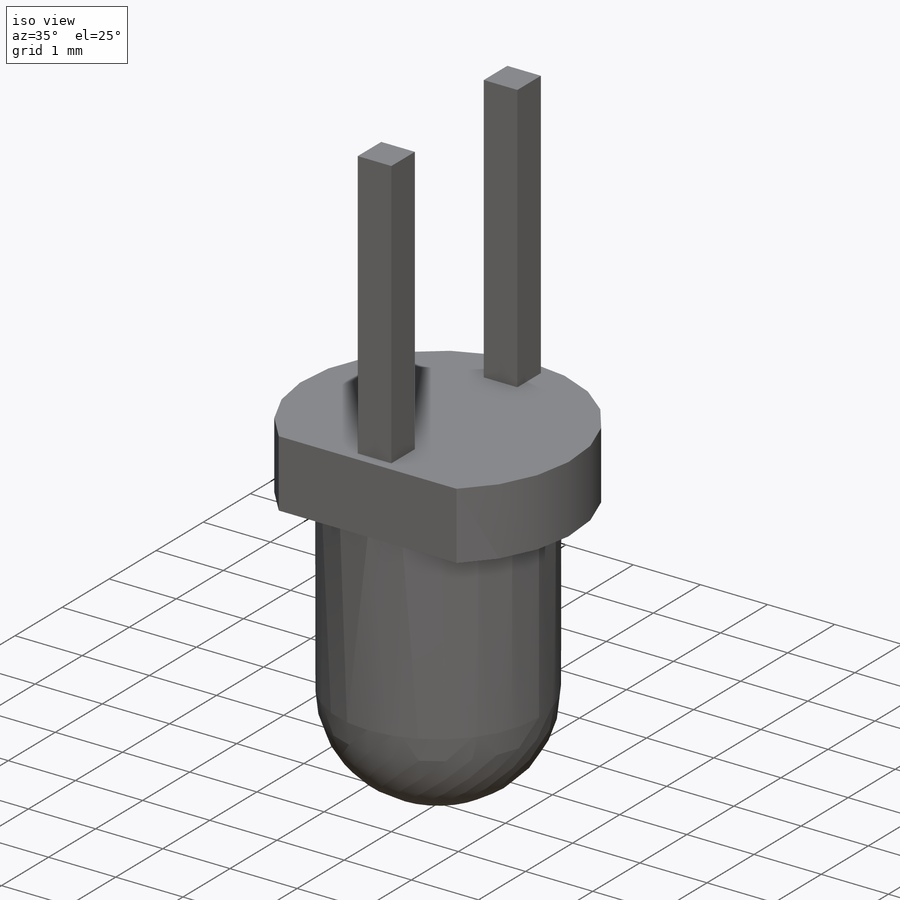
[diagram: iso view]
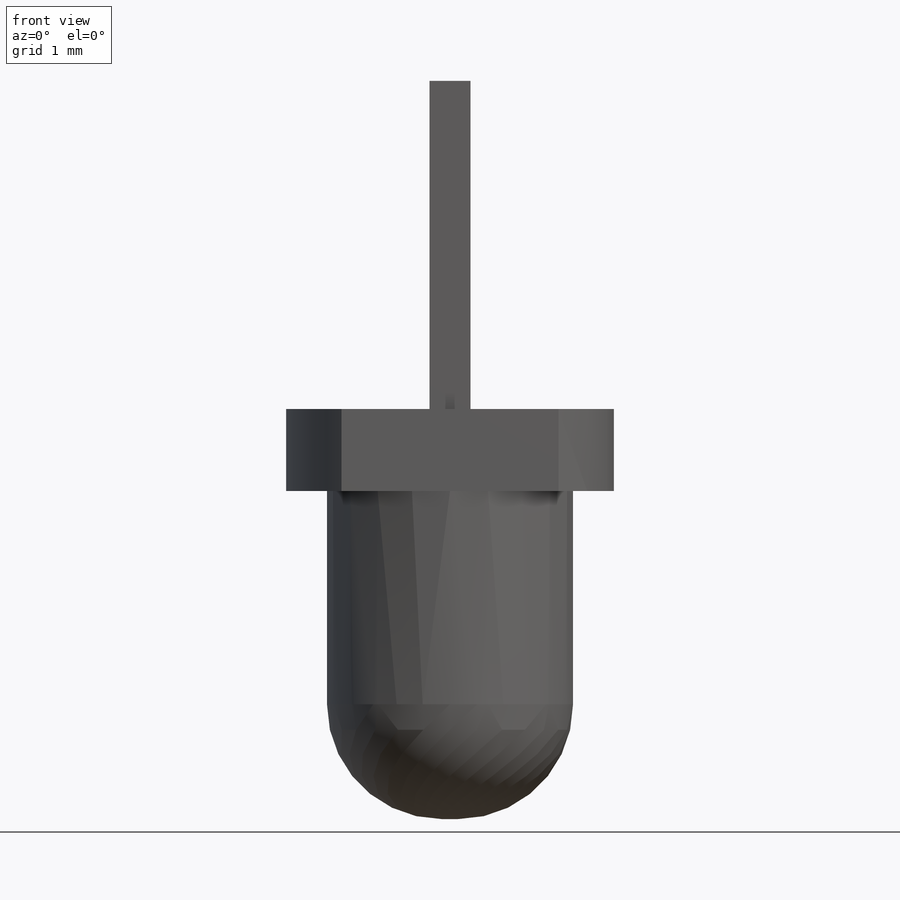
[diagram: front view]
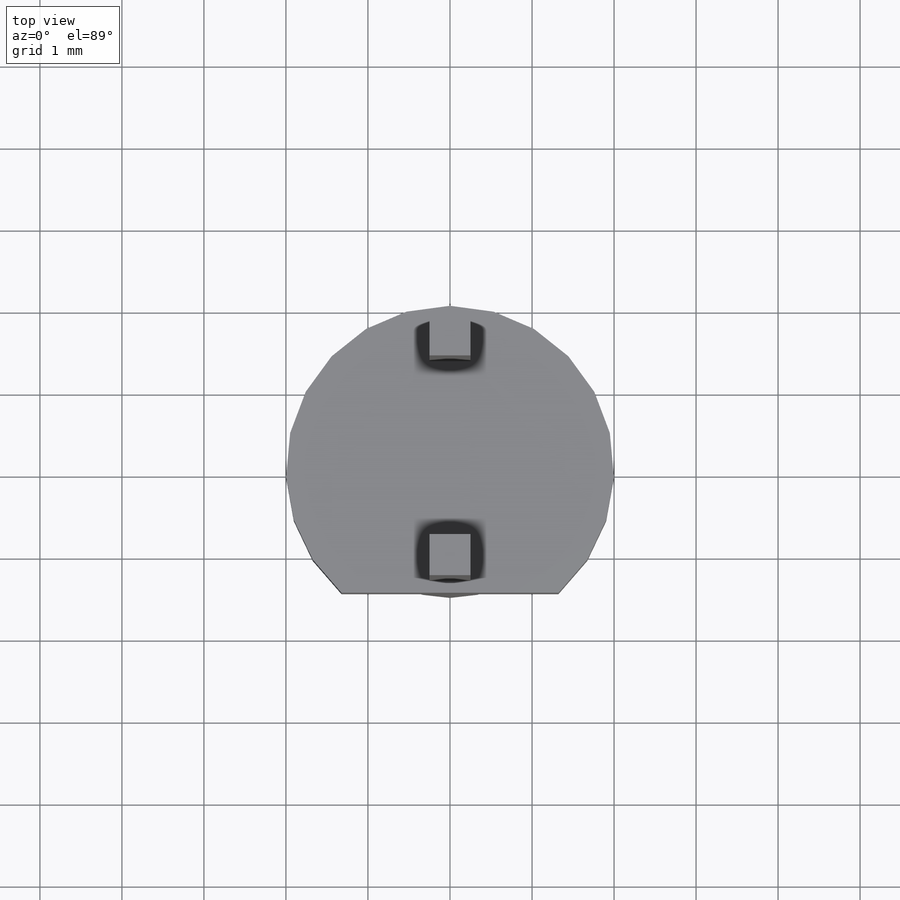
[diagram: top view]
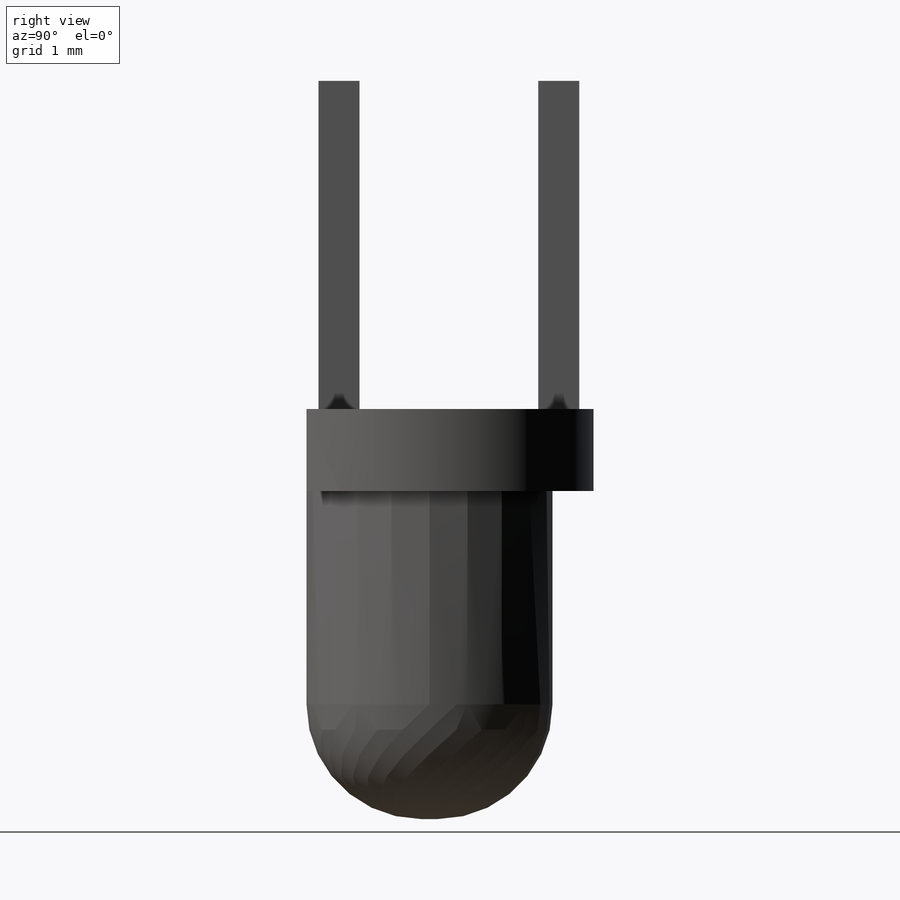
[diagram: right view]
SOLIDWORKS PART (.sldprt)
format: sldprt  version: not decoded by parser v0  size: 213,504 bytes
history: native  units: mm
features: sketch x4, plane x3, extrude x3, material x1, fillet x1, cut_extrude x1 (+10 scaffold rows collapsed)
feature tree (23):
  scaffold x10  (default folders/planes/origin — collapsed)
  material  "Материал <не указан>"
  plane  "Спереди"
  plane  "Сверху"
  plane  "Справа"
  sketch  "Эскиз1"  dims[D1=~30.391457mm]
  extrude  "Бобышка-Вытянуть1"  Depth=1mm
  sketch  "Эскиз2"  dims[D1=3.0mm]
  extrude  "Бобышка-Вытянуть2"  Depth=4mm
  fillet  "Скругление1"  Radius=1.4mm
  sketch  "Эскиз3"  dims[D1=~2.645751mm]
  cut_extrude  "Вырез-Вытянуть1"  Depth=4mm
  sketch  "Эскиз4"  dims[c1.D1=0.25mm c1.D2=0.25mm c2.D1=0.25mm c2.D2=0.25mm]
  extrude  "Бобышка-Вытянуть3"  Depth=4mm
decode coverage: 9 of 9 modeling features carry decoded parameters
note: ~ marks probable driven/reference dimensions
note: suppression state not decoded; provenance and decode notes live in map.json
